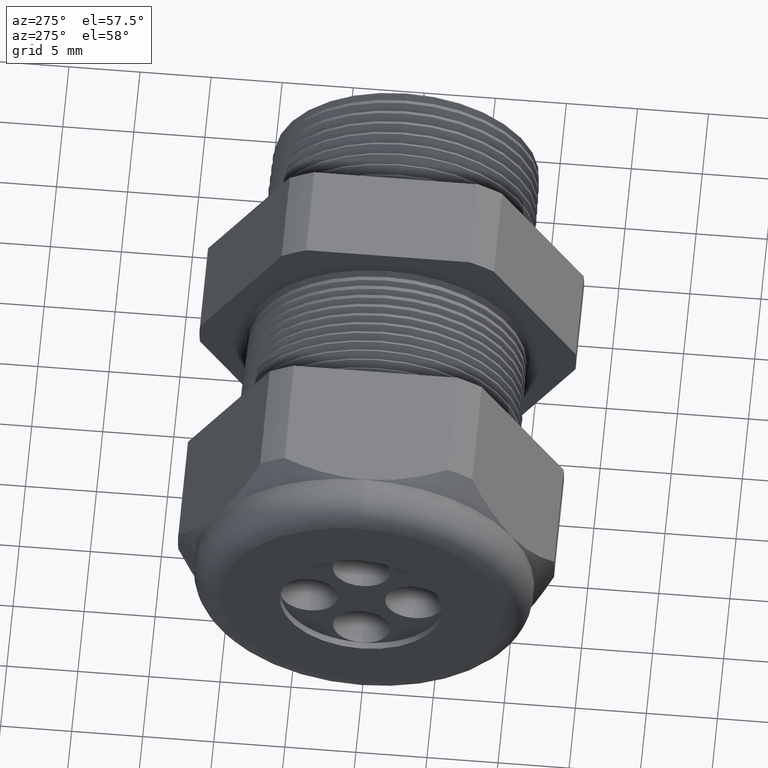
[diagram: clean part render]
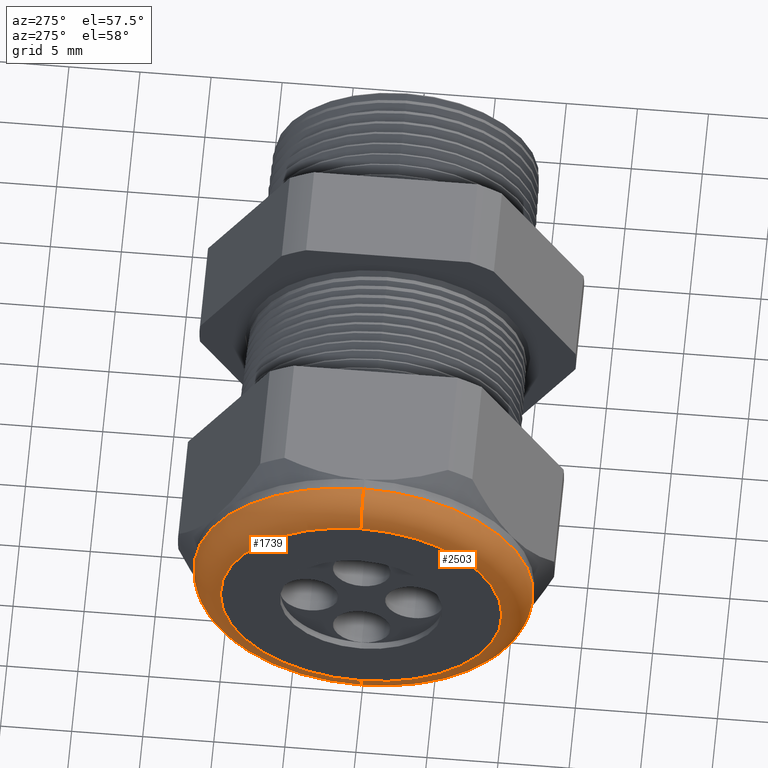
[diagram: same view with one multi-face feature highlighted, each face labeled with its STEP entity id]
A machine part, auxiliary view. The highlighted faces form ONE feature: a constant-radius fillet chain: 2 tangent blend faces with common blend radius 2.032 mm. The faces share edges in the B-rep.
Their STEP definitions:
[1] entity #1739 (Torus):
#1739 = ADVANCED_FACE ( 'NONE', ( #3966 ), #3964, .T. ) ;
#1740 = ORIENTED_EDGE ( 'NONE', *, *, #1741, .F. ) ;
#1741 = EDGE_CURVE ( 'NONE', #1742, #1743, #3960, .T. ) ;
#1742 = VERTEX_POINT ( 'NONE', #3955 ) ;
#1743 = VERTEX_POINT ( 'NONE', #3954 ) ;
#1744 = ORIENTED_EDGE ( 'NONE', *, *, #1745, .T. ) ;
#1745 = EDGE_CURVE ( 'NONE', #1742, #1746, #3953, .T. ) ;
#1746 = VERTEX_POINT ( 'NONE', #4011 ) ;
#1747 = ORIENTED_EDGE ( 'NONE', *, *, #1748, .F. ) ;
#1748 = EDGE_CURVE ( 'NONE', #1749, #1746, #4010, .T. ) ;
#1749 = VERTEX_POINT ( 'NONE', #4005 ) ;
#1750 = ORIENTED_EDGE ( 'NONE', *, *, #1751, .F. ) ;
#1751 = EDGE_CURVE ( 'NONE', #1743, #1749, #4003, .T. ) ;
#1767 = EDGE_LOOP ( 'NONE', ( #1740, #1744, #1747, #1750 ) ) ;
#3949 = DIRECTION ( 'NONE',  ( 0.0000000000000000000, -1.224646799147353900E-016, 1.000000000000000000 ) ) ;
#3950 = DIRECTION ( 'NONE',  ( 0.0000000000000000000, 1.000000000000000000, 1.224646799147353200E-016 ) ) ;
#3951 = CARTESIAN_POINT ( 'NONE',  ( -1.330000000000000100, 4.776122516674676800E-017, -0.3899999999999999600 ) ) ;
#3952 = AXIS2_PLACEMENT_3D ( 'NONE', #3951, #3950, #3949 ) ;
#3953 = CIRCLE ( 'NONE', #3952, 0.07999999999999996000 ) ;
#3954 = CARTESIAN_POINT ( 'NONE',  ( -1.330000000000000100, 5.755839955992558400E-017, 0.4699999999999999200 ) ) ;
#3955 = CARTESIAN_POINT ( 'NONE',  ( -1.330000000000000100, 0.0000000000000000000, -0.4699999999999999200 ) ) ;
#3956 = DIRECTION ( 'NONE',  ( 0.0000000000000000000, 0.0000000000000000000, 1.000000000000000000 ) ) ;
#3957 = DIRECTION ( 'NONE',  ( 1.000000000000000000, 0.0000000000000000000, 0.0000000000000000000 ) ) ;
#3958 = CARTESIAN_POINT ( 'NONE',  ( -1.330000000000000100, 0.0000000000000000000, 0.0000000000000000000 ) ) ;
#3959 = AXIS2_PLACEMENT_3D ( 'NONE', #3958, #3957, #3956 ) ;
#3960 = CIRCLE ( 'NONE', #3959, 0.4699999999999999200 ) ;
#3961 = DIRECTION ( 'NONE',  ( 0.0000000000000000000, 0.0000000000000000000, 1.000000000000000000 ) ) ;
#3962 = DIRECTION ( 'NONE',  ( -1.000000000000000000, 0.0000000000000000000, 0.0000000000000000000 ) ) ;
#3963 = AXIS2_PLACEMENT_3D ( 'NONE', #3965, #3962, #3961 ) ;
#3964 = TOROIDAL_SURFACE ( 'NONE', #3963, 0.3899999999999999600, 0.08000000000000000200 ) ;
#3965 = CARTESIAN_POINT ( 'NONE',  ( -1.330000000000000100, 0.0000000000000000000, 0.0000000000000000000 ) ) ;
#3966 = FACE_OUTER_BOUND ( 'NONE', #1767, .T. ) ;
#3999 = DIRECTION ( 'NONE',  ( 0.0000000000000000000, 0.0000000000000000000, -1.000000000000000000 ) ) ;
#4000 = DIRECTION ( 'NONE',  ( 0.0000000000000000000, -1.000000000000000000, 0.0000000000000000000 ) ) ;
#4001 = CARTESIAN_POINT ( 'NONE',  ( -1.330000000000000100, 0.0000000000000000000, 0.3899999999999999600 ) ) ;
#4002 = AXIS2_PLACEMENT_3D ( 'NONE', #4001, #4000, #3999 ) ;
#4003 = CIRCLE ( 'NONE', #4002, 0.07999999999999996000 ) ;
#4005 = CARTESIAN_POINT ( 'NONE',  ( -1.409999999999999900, 0.0000000000000000000, 0.3899999999999999600 ) ) ;
#4006 = DIRECTION ( 'NONE',  ( 0.0000000000000000000, 0.0000000000000000000, 1.000000000000000000 ) ) ;
#4007 = DIRECTION ( 'NONE',  ( -1.000000000000000000, 0.0000000000000000000, 0.0000000000000000000 ) ) ;
#4008 = CARTESIAN_POINT ( 'NONE',  ( -1.409999999999999900, 0.0000000000000000000, 0.0000000000000000000 ) ) ;
#4009 = AXIS2_PLACEMENT_3D ( 'NONE', #4008, #4007, #4006 ) ;
#4010 = CIRCLE ( 'NONE', #4009, 0.3899999999999999600 ) ;
#4011 = CARTESIAN_POINT ( 'NONE',  ( -1.409999999999999900, 5.265981236333617600E-017, -0.3899999999999999600 ) ) ;
[2] entity #2503 (Torus):
#279 = DIRECTION ( 'NONE',  ( 0.0000000000000000000, 0.0000000000000000000, 1.000000000000000000 ) ) ;
#280 = DIRECTION ( 'NONE',  ( -1.000000000000000000, 0.0000000000000000000, 0.0000000000000000000 ) ) ;
#281 = AXIS2_PLACEMENT_3D ( 'NONE', #288, #280, #279 ) ;
#282 = TOROIDAL_SURFACE ( 'NONE', #281, 0.3899999999999999600, 0.08000000000000000200 ) ;
#283 = FACE_OUTER_BOUND ( 'NONE', #2504, .T. ) ;
#288 = CARTESIAN_POINT ( 'NONE',  ( -1.330000000000000100, 0.0000000000000000000, 0.0000000000000000000 ) ) ;
#1742 = VERTEX_POINT ( 'NONE', #3955 ) ;
#1743 = VERTEX_POINT ( 'NONE', #3954 ) ;
#1745 = EDGE_CURVE ( 'NONE', #1742, #1746, #3953, .T. ) ;
#1746 = VERTEX_POINT ( 'NONE', #4011 ) ;
#1749 = VERTEX_POINT ( 'NONE', #4005 ) ;
#1751 = EDGE_CURVE ( 'NONE', #1743, #1749, #4003, .T. ) ;
#2294 = EDGE_CURVE ( 'NONE', #1743, #1742, #5042, .T. ) ;
#2361 = EDGE_CURVE ( 'NONE', #1746, #1749, #5226, .T. ) ;
#2503 = ADVANCED_FACE ( 'NONE', ( #283 ), #282, .T. ) ;
#2504 = EDGE_LOOP ( 'NONE', ( #2505, #2506, #2507, #2508 ) ) ;
#2505 = ORIENTED_EDGE ( 'NONE', *, *, #1745, .F. ) ;
#2506 = ORIENTED_EDGE ( 'NONE', *, *, #2294, .F. ) ;
#2507 = ORIENTED_EDGE ( 'NONE', *, *, #1751, .T. ) ;
#2508 = ORIENTED_EDGE ( 'NONE', *, *, #2361, .F. ) ;
#3949 = DIRECTION ( 'NONE',  ( 0.0000000000000000000, -1.224646799147353900E-016, 1.000000000000000000 ) ) ;
#3950 = DIRECTION ( 'NONE',  ( 0.0000000000000000000, 1.000000000000000000, 1.224646799147353200E-016 ) ) ;
#3951 = CARTESIAN_POINT ( 'NONE',  ( -1.330000000000000100, 4.776122516674676800E-017, -0.3899999999999999600 ) ) ;
#3952 = AXIS2_PLACEMENT_3D ( 'NONE', #3951, #3950, #3949 ) ;
#3953 = CIRCLE ( 'NONE', #3952, 0.07999999999999996000 ) ;
#3954 = CARTESIAN_POINT ( 'NONE',  ( -1.330000000000000100, 5.755839955992558400E-017, 0.4699999999999999200 ) ) ;
#3955 = CARTESIAN_POINT ( 'NONE',  ( -1.330000000000000100, 0.0000000000000000000, -0.4699999999999999200 ) ) ;
#3999 = DIRECTION ( 'NONE',  ( 0.0000000000000000000, 0.0000000000000000000, -1.000000000000000000 ) ) ;
#4000 = DIRECTION ( 'NONE',  ( 0.0000000000000000000, -1.000000000000000000, 0.0000000000000000000 ) ) ;
#4001 = CARTESIAN_POINT ( 'NONE',  ( -1.330000000000000100, 0.0000000000000000000, 0.3899999999999999600 ) ) ;
#4002 = AXIS2_PLACEMENT_3D ( 'NONE', #4001, #4000, #3999 ) ;
#4003 = CIRCLE ( 'NONE', #4002, 0.07999999999999996000 ) ;
#4005 = CARTESIAN_POINT ( 'NONE',  ( -1.409999999999999900, 0.0000000000000000000, 0.3899999999999999600 ) ) ;
#4011 = CARTESIAN_POINT ( 'NONE',  ( -1.409999999999999900, 5.265981236333617600E-017, -0.3899999999999999600 ) ) ;
#5042 = CIRCLE ( 'NONE', #5101, 0.4699999999999999200 ) ;
#5047 = CARTESIAN_POINT ( 'NONE',  ( -1.330000000000000100, 0.0000000000000000000, 0.0000000000000000000 ) ) ;
#5099 = DIRECTION ( 'NONE',  ( 0.0000000000000000000, 0.0000000000000000000, 1.000000000000000000 ) ) ;
#5100 = DIRECTION ( 'NONE',  ( 1.000000000000000000, 0.0000000000000000000, 0.0000000000000000000 ) ) ;
#5101 = AXIS2_PLACEMENT_3D ( 'NONE', #5047, #5100, #5099 ) ;
#5222 = DIRECTION ( 'NONE',  ( 0.0000000000000000000, 0.0000000000000000000, 1.000000000000000000 ) ) ;
#5223 = DIRECTION ( 'NONE',  ( -1.000000000000000000, 0.0000000000000000000, 0.0000000000000000000 ) ) ;
#5224 = CARTESIAN_POINT ( 'NONE',  ( -1.409999999999999900, 0.0000000000000000000, 0.0000000000000000000 ) ) ;
#5225 = AXIS2_PLACEMENT_3D ( 'NONE', #5224, #5223, #5222 ) ;
#5226 = CIRCLE ( 'NONE', #5225, 0.3899999999999999600 ) ;